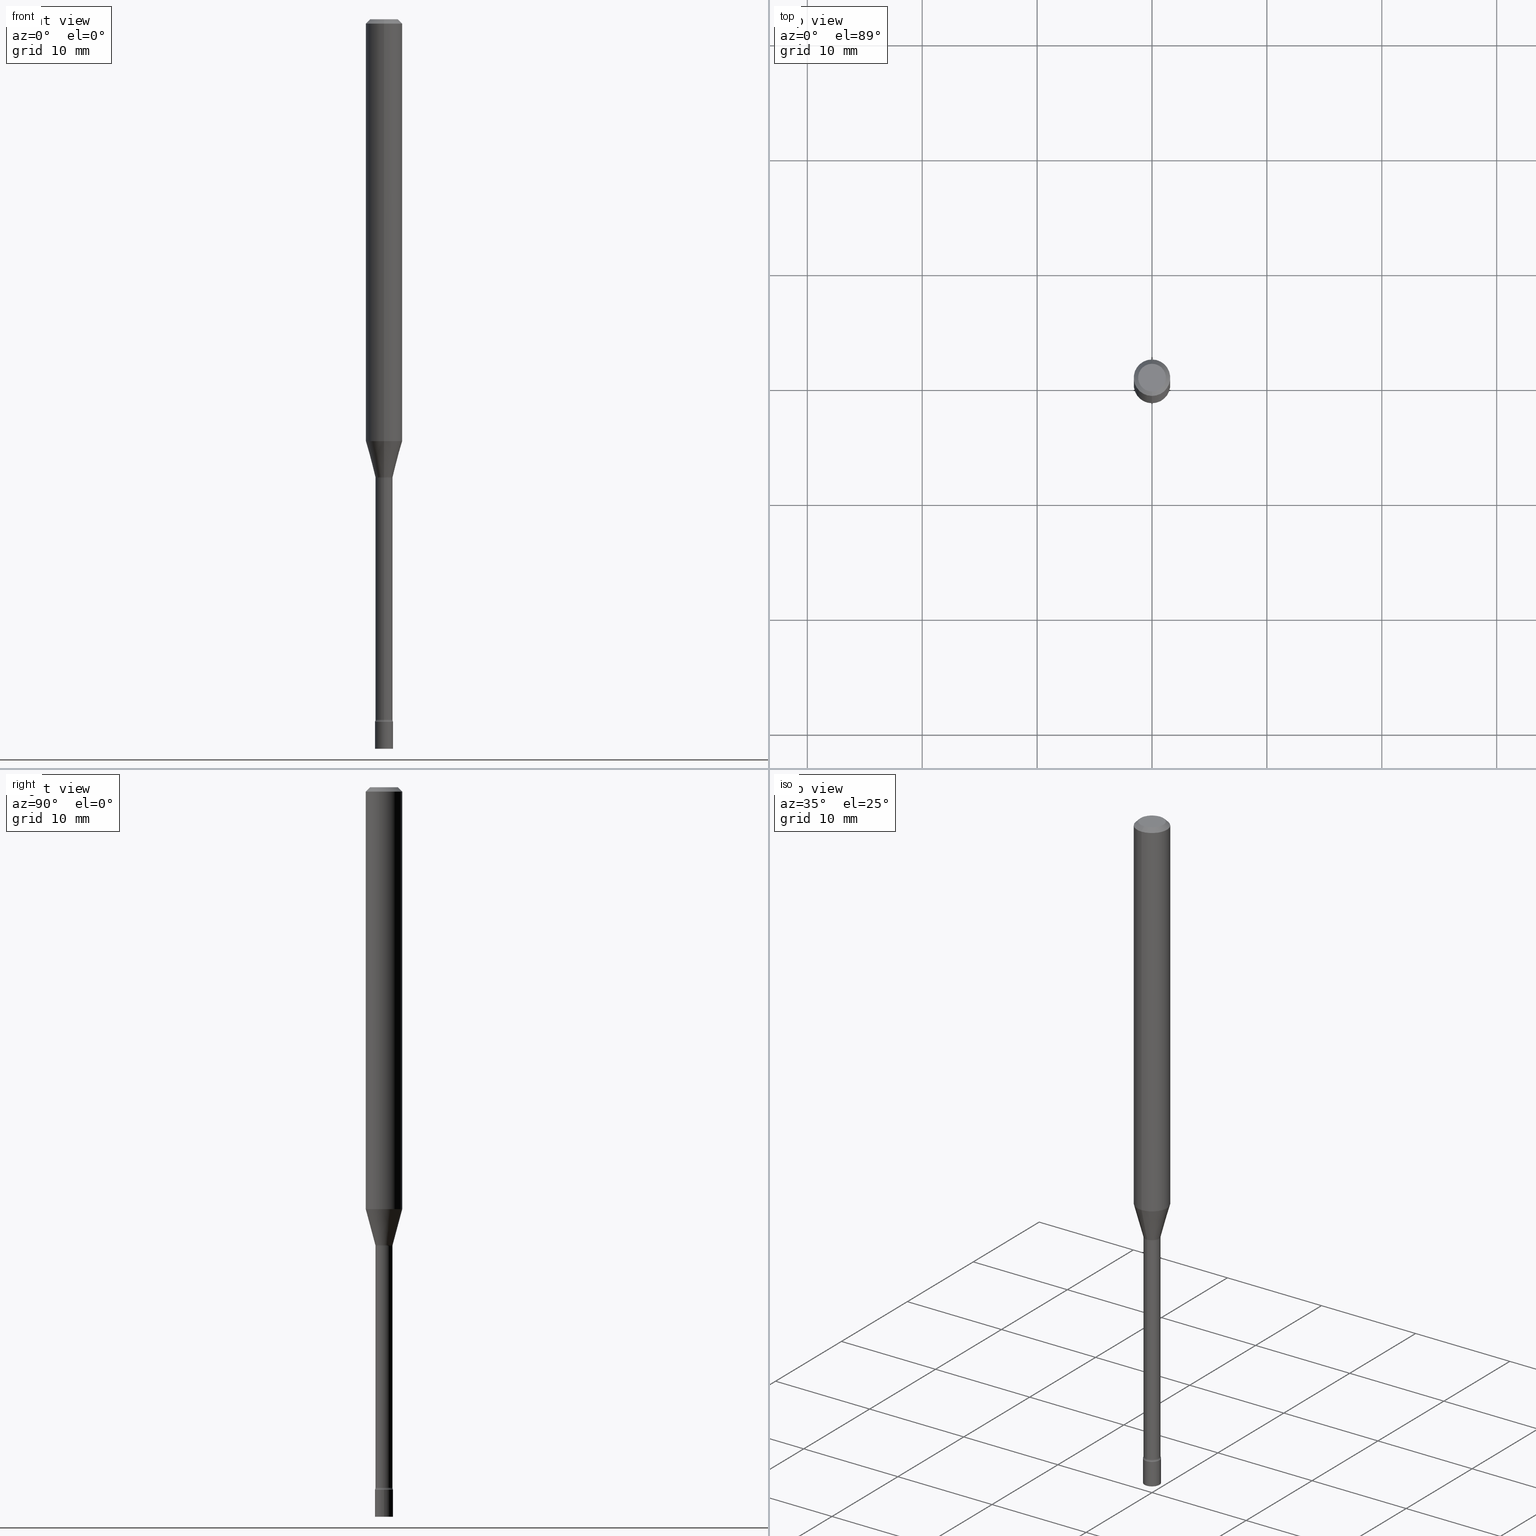
[diagram: canonical four-view strip — front | top / right | iso, engineering-drawing reading convention]
A machine part, canonical four-view strip (front | top / right | iso — engineering-drawing reading convention). The complete STEP part file that produces these views, byte-faithful:
ISO-10303-21;
HEADER;
FILE_DESCRIPTION (( 'STEP AP203' ),
    '1' );
FILE_NAME ('09687.STEP',
    '2024-03-09T00:49:43',
    ( '' ),
    ( '' ),
    'SwSTEP 2.0',
    'SolidWorks 2023',
    '' );
FILE_SCHEMA (( 'CONFIG_CONTROL_DESIGN' ));
ENDSEC;

DATA;
#1 = CIRCLE ( 'NONE', #371, 0.02966111260566398414 ) ;
#2 = FACE_OUTER_BOUND ( 'NONE', #141, .T. ) ;
#3 = DIRECTION ( 'NONE',  ( -6.982962677686265922E-15, -1.000000000000000000, 3.491503955502470193E-15 ) ) ;
#4 = VERTEX_POINT ( 'NONE', #437 ) ;
#5 = LINE ( 'NONE', #329, #478 ) ;
#6 = DIRECTION ( 'NONE',  ( -2.445453013056340806E-29, 3.491503955502470193E-15, 1.000000000000000000 ) ) ;
#7 = AXIS2_PLACEMENT_3D ( 'NONE', #51, #12, #211 ) ;
#8 = APPROVAL_PERSON_ORGANIZATION ( #301, #223, #138 ) ;
#9 = CARTESIAN_POINT ( 'NONE',  ( 5.868557853830122148E-29, -8.378853672651157378E-15, -2.399783525791634897 ) ) ;
#10 = CARTESIAN_POINT ( 'NONE',  ( 2.136957277799091056E-16, 0.02914999999999166522, -2.399783525791634897 ) ) ;
#11 = EDGE_CURVE ( 'NONE', #147, #474, #297, .T. ) ;
#12 = DIRECTION ( 'NONE',  ( -2.445453013056340806E-29, 3.491503955502470193E-15, 1.000000000000000000 ) ) ;
#13 = DIRECTION ( 'NONE',  ( -2.445468806185136597E-29, 3.491481338843145583E-15, 1.000000000000000000 ) ) ;
#14 = CARTESIAN_POINT ( 'NONE',  ( 5.868595753920427457E-29, -8.378799397564700895E-15, -2.399783525791634897 ) ) ;
#15 = DIRECTION ( 'NONE',  ( -2.445453013056340806E-29, 3.491503955502470193E-15, 1.000000000000000000 ) ) ;
#16 = ADVANCED_FACE ( 'NONE', ( #237 ), #389, .F. ) ;
#17 = DIRECTION ( 'NONE',  ( -6.982962677686265922E-15, -1.000000000000000000, 0.000000000000000000 ) ) ;
#18 = VECTOR ( 'NONE', #132, 39.37007874015748143 ) ;
#19 = AXIS2_PLACEMENT_3D ( 'NONE', #214, #172, #450 ) ;
#20 = APPROVAL_ROLE ( '' ) ;
#21 = DIRECTION ( 'NONE',  ( -6.982962677686266711E-15, -1.000000000000000000, 0.000000000000000000 ) ) ;
#22 = APPROVAL ( #420, 'UNSPECIFIED' ) ;
#23 = ORIENTED_EDGE ( 'NONE', *, *, #393, .T. ) ;
#24 = DATE_TIME_ROLE ( 'creation_date' ) ;
#25 = VERTEX_POINT ( 'NONE', #82 ) ;
#26 = COORDINATED_UNIVERSAL_TIME_OFFSET ( 5, 0, .BEHIND. ) ;
#27 = AXIS2_PLACEMENT_3D ( 'NONE', #87, #49, #55 ) ;
#28 = ORIENTED_EDGE ( 'NONE', *, *, #136, .F. ) ;
#29 = CC_DESIGN_PERSON_AND_ORGANIZATION_ASSIGNMENT ( #513, #429, ( #191 ) ) ;
#30 = DATE_AND_TIME ( #267, #374 ) ;
#31 = ORIENTED_EDGE ( 'NONE', *, *, #219, .F. ) ;
#32 = EDGE_CURVE ( 'NONE', #4, #25, #176, .T. ) ;
#33 = AXIS2_PLACEMENT_3D ( 'NONE', #377, #204, #244 ) ;
#34 = AXIS2_PLACEMENT_3D ( 'NONE', #14, #6, #341 ) ;
#35 = DIRECTION ( 'NONE',  ( -6.982962677686265922E-15, -1.000000000000000000, 3.483106191921935554E-15 ) ) ;
#36 = APPROVAL_PERSON_ORGANIZATION ( #395, #106, #20 ) ;
#37 = CC_DESIGN_SECURITY_CLASSIFICATION ( #353, ( #432 ) ) ;
#38 = DIRECTION ( 'NONE',  ( 1.000000000000000000, -6.982962677686266711E-15, 4.876176775795935232E-29 ) ) ;
#39 = EDGE_CURVE ( 'NONE', #119, #239, #245, .T. ) ;
#40 = EDGE_LOOP ( 'NONE', ( #226, #190, #145, #262 ) ) ;
#41 = CARTESIAN_POINT ( 'NONE',  ( 0.000000000000000000, 0.000000000000000000, 0.000000000000000000 ) ) ;
#42 = ORIENTED_EDGE ( 'NONE', *, *, #516, .F. ) ;
#43 = CARTESIAN_POINT ( 'NONE',  ( 3.668179519584518216E-31, -5.237255933253716063E-17, -0.01500000000000003067 ) ) ;
#44 = ORIENTED_EDGE ( 'NONE', *, *, #39, .T. ) ;
#45 = EDGE_CURVE ( 'NONE', #350, #160, #194, .T. ) ;
#46 = TOROIDAL_SURFACE ( 'NONE', #34, 0.04415000000000007807, 0.01500000000000003240 ) ;
#47 = DIRECTION ( 'NONE',  ( -2.445453013056340806E-29, 3.491503955502470193E-15, 1.000000000000000000 ) ) ;
#48 = DIRECTION ( 'NONE',  ( -2.445453013056340806E-29, 3.491503955502470193E-15, 1.000000000000000000 ) ) ;
#49 = DIRECTION ( 'NONE',  ( -2.445453013056340806E-29, 3.491503955502470193E-15, 1.000000000000000000 ) ) ;
#50 = CIRCLE ( 'NONE', #438, 0.01500000000000003587 ) ;
#51 = CARTESIAN_POINT ( 'NONE',  ( 0.000000000000000000, 0.000000000000000000, 0.000000000000000000 ) ) ;
#52 = CARTESIAN_POINT ( 'NONE',  ( 5.886243416487624138E-29, -8.403995582595451079E-15, -2.407000000000000028 ) ) ;
#53 = DIRECTION ( 'NONE',  ( -6.982962677686265922E-15, -1.000000000000000000, 3.491503955502470193E-15 ) ) ;
#54 = EDGE_CURVE ( 'NONE', #150, #355, #151, .T. ) ;
#55 = DIRECTION ( 'NONE',  ( -6.982962677686265922E-15, -1.000000000000000000, 0.000000000000000000 ) ) ;
#56 = EDGE_CURVE ( 'NONE', #203, #62, #497, .T. ) ;
#57 = CARTESIAN_POINT ( 'NONE',  ( -2.035533620545162301E-16, -0.02915000000000548749, -1.571974787463811030 ) ) ;
#58 = VECTOR ( 'NONE', #502, 39.37007874015748143 ) ;
#59 = FACE_OUTER_BOUND ( 'NONE', #515, .T. ) ;
#60 = ORIENTED_EDGE ( 'NONE', *, *, #257, .F. ) ;
#61 = PERSON_AND_ORGANIZATION ( #123, #229 ) ;
#62 = VERTEX_POINT ( 'NONE', #125 ) ;
#63 = APPROVAL_DATE_TIME ( #146, #106 ) ;
#64 = ORIENTED_EDGE ( 'NONE', *, *, #56, .T. ) ;
#65 = AXIS2_PLACEMENT_3D ( 'NONE', #359, #435, #122 ) ;
#66 = PERSON_AND_ORGANIZATION ( #123, #229 ) ;
#67 = AXIS2_PLACEMENT_3D ( 'NONE', #443, #84, #403 ) ;
#68 = APPROVAL_PERSON_ORGANIZATION ( #66, #22, #182 ) ;
#69 = ORIENTED_EDGE ( 'NONE', *, *, #317, .F. ) ;
#70 = CALENDAR_DATE ( 2024, 8, 3 ) ;
#71 = ORIENTED_EDGE ( 'NONE', *, *, #509, .T. ) ;
#72 = DIRECTION ( 'NONE',  ( -2.445453013056340806E-29, 3.491503955502470193E-15, 1.000000000000000000 ) ) ;
#73 = DIRECTION ( 'NONE',  ( -2.445468806185136597E-29, 3.491481338843145583E-15, 1.000000000000000000 ) ) ;
#74 = CIRCLE ( 'NONE', #209, 0.01500000000000002720 ) ;
#75 = DIRECTION ( 'NONE',  ( -6.982962677686265922E-15, -1.000000000000000000, 4.370956789862821150E-15 ) ) ;
#76 = FACE_OUTER_BOUND ( 'NONE', #104, .T. ) ;
#77 = ORIENTED_EDGE ( 'NONE', *, *, #243, .F. ) ;
#78 = FACE_OUTER_BOUND ( 'NONE', #40, .T. ) ;
#79 = ADVANCED_FACE ( 'NONE', ( #92 ), #184, .F. ) ;
#80 = ORIENTED_EDGE ( 'NONE', *, *, #54, .F. ) ;
#81 = DIRECTION ( 'NONE',  ( -2.445453013056340806E-29, 3.491503955502470193E-15, 1.000000000000000000 ) ) ;
#82 = CARTESIAN_POINT ( 'NONE',  ( -3.773273898774340269E-16, -0.04749999999999999362, 1.369336012498162259E-16 ) ) ;
#83 = CIRCLE ( 'NONE', #193, 0.02915000000000004393 ) ;
#84 = DIRECTION ( 'NONE',  ( -2.445453013056340806E-29, 3.491503955502470193E-15, 1.000000000000000000 ) ) ;
#85 = CARTESIAN_POINT ( 'NONE',  ( 2.071232074740693438E-16, 0.02915000000000002311, -1.017773403028970950E-16 ) ) ;
#86 = CARTESIAN_POINT ( 'NONE',  ( 3.274220454076525799E-16, 0.02966111260565850935, -1.568092501787273108 ) ) ;
#87 = CARTESIAN_POINT ( 'NONE',  ( 3.834696533246742775E-29, -5.475001172584028090E-15, -1.568092501787273108 ) ) ;
#88 = CIRCLE ( 'NONE', #19, 0.03099999999999999978 ) ;
#89 = CARTESIAN_POINT ( 'NONE',  ( 3.534990624841963058E-29, -5.047095030410835227E-15, -1.445536105567578167 ) ) ;
#90 = DIRECTION ( 'NONE',  ( -6.982962677686265922E-15, -1.000000000000000000, 0.000000000000000000 ) ) ;
#91 = EDGE_CURVE ( 'NONE', #25, #239, #215, .T. ) ;
#92 = FACE_OUTER_BOUND ( 'NONE', #311, .T. ) ;
#93 = DIRECTION ( 'NONE',  ( 1.000000000000000000, -6.982962677686265922E-15, 4.876176775795935793E-29 ) ) ;
#94 =( LENGTH_UNIT ( ) NAMED_UNIT ( * ) SI_UNIT ( $, .METRE. ) );
#95 = DIRECTION ( 'NONE',  ( -2.445453013056340806E-29, 3.491503955502470193E-15, 1.000000000000000000 ) ) ;
#96 = ORIENTED_EDGE ( 'NONE', *, *, #251, .T. ) ;
#97 = AXIS2_PLACEMENT_3D ( 'NONE', #240, #200, #408 ) ;
#98 = DATE_TIME_ROLE ( 'classification_date' ) ;
#99 = ORIENTED_EDGE ( 'NONE', *, *, #263, .T. ) ;
#100 = EDGE_LOOP ( 'NONE', ( #440, #520 ) ) ;
#101 = PERSON_AND_ORGANIZATION ( #123, #229 ) ;
#102 = AXIS2_PLACEMENT_3D ( 'NONE', #300, #208, #379 ) ;
#103 = LOCAL_TIME ( 19, 49, 43.00000000000000000, #427 ) ;
#104 = EDGE_LOOP ( 'NONE', ( #407, #357, #77, #472 ) ) ;
#105 = CARTESIAN_POINT ( 'NONE',  ( 3.668179519584518216E-31, -5.237255933253716063E-17, -0.01500000000000003067 ) ) ;
#106 = APPROVAL ( #179, 'UNSPECIFIED' ) ;
#107 = CYLINDRICAL_SURFACE ( 'NONE', #260, 0.03099999999999999978 ) ;
#108 = VERTEX_POINT ( 'NONE', #10 ) ;
#109 = EDGE_CURVE ( 'NONE', #108, #232, #421, .T. ) ;
#110 = LINE ( 'NONE', #401, #400 ) ;
#111 = AXIS2_PLACEMENT_3D ( 'NONE', #247, #47, #314 ) ;
#112 = AXIS2_PLACEMENT_3D ( 'NONE', #231, #281, #175 ) ;
#113 = ORIENTED_EDGE ( 'NONE', *, *, #166, .T. ) ;
#114 = ADVANCED_BREP_SHAPE_REPRESENTATION ( '09687', ( #189, #367, #168 ), #210 ) ;
#115 = CC_DESIGN_APPROVAL ( #22, ( #432 ) ) ;
#116 = DIRECTION ( 'NONE',  ( -6.982962677686265922E-15, -1.000000000000000000, 3.491503955502470193E-15 ) ) ;
#117 = EDGE_CURVE ( 'NONE', #62, #160, #477, .T. ) ;
#118 = DIRECTION ( 'NONE',  ( 6.982962677686265922E-15, 1.000000000000000000, -3.483106191921935554E-15 ) ) ;
#119 = VERTEX_POINT ( 'NONE', #386 ) ;
#120 = CYLINDRICAL_SURFACE ( 'NONE', #33, 0.03099999999999999978 ) ;
#121 = CARTESIAN_POINT ( 'NONE',  ( 4.440892098500977205E-16, 0.06249999999999492073, -1.445536105567578389 ) ) ;
#122 = DIRECTION ( 'NONE',  ( -6.982962677686265922E-15, -1.000000000000000000, 3.491503955502470193E-15 ) ) ;
#123 = PERSON ( 'UNSPECIFIED', 'UNSPECIFIED', 'UNSPECIFIED', ('UNSPECIFIED'), ('UNSPECIFIED'), ('UNSPECIFIED') ) ;
#124 = LINE ( 'NONE', #412, #306 ) ;
#125 = CARTESIAN_POINT ( 'NONE',  ( -0.03099999999999999978, -8.346081216766027547E-15, -2.407000000000000028 ) ) ;
#126 = EDGE_CURVE ( 'NONE', #108, #150, #205, .T. ) ;
#127 = AXIS2_PLACEMENT_3D ( 'NONE', #448, #416, #53 ) ;
#128 = TOROIDAL_SURFACE ( 'NONE', #228, 0.04415000000000000174, 0.01500000000000002373 ) ;
#129 = CARTESIAN_POINT ( 'NONE',  ( 5.868557853830122148E-29, -8.378853672651157378E-15, -2.399783525791634897 ) ) ;
#130 = DIRECTION ( 'NONE',  ( -2.445453013056340806E-29, 3.491503955502470193E-15, 1.000000000000000000 ) ) ;
#131 = DIRECTION ( 'NONE',  ( -6.982962677686266711E-15, -1.000000000000000000, 3.491503955502470193E-15 ) ) ;
#132 = DIRECTION ( 'NONE',  ( -2.445468806185136877E-29, 3.491481338843145188E-15, 1.000000000000000000 ) ) ;
#133 = ADVANCED_FACE ( 'NONE', ( #292 ), #120, .T. ) ;
#134 = FACE_OUTER_BOUND ( 'NONE', #183, .T. ) ;
#135 = DIRECTION ( 'NONE',  ( -2.445453013056340806E-29, 3.491503955502470193E-15, 1.000000000000000000 ) ) ;
#136 = EDGE_CURVE ( 'NONE', #160, #62, #331, .T. ) ;
#137 = CARTESIAN_POINT ( 'NONE',  ( 7.070498346885961015E-46, -1.009492834813148577E-31, -2.891283663655108684E-17 ) ) ;
#138 = APPROVAL_ROLE ( '' ) ;
#139 = ORIENTED_EDGE ( 'NONE', *, *, #148, .F. ) ;
#140 = COORDINATED_UNIVERSAL_TIME_OFFSET ( 5, 0, .BEHIND. ) ;
#141 = EDGE_LOOP ( 'NONE', ( #242, #434, #96, #80 ) ) ;
#142 = CIRCLE ( 'NONE', #235, 0.02915000000000004393 ) ;
#143 = CC_DESIGN_APPROVAL ( #106, ( #191 ) ) ;
#144 = PERSON_AND_ORGANIZATION ( #123, #229 ) ;
#145 = ORIENTED_EDGE ( 'NONE', *, *, #334, .F. ) ;
#146 = DATE_AND_TIME ( #346, #103 ) ;
#147 = VERTEX_POINT ( 'NONE', #482 ) ;
#148 = EDGE_CURVE ( 'NONE', #504, #366, #1, .T. ) ;
#149 = MECHANICAL_CONTEXT ( 'NONE', #498, 'mechanical' ) ;
#150 = VERTEX_POINT ( 'NONE', #280 ) ;
#151 = CIRCLE ( 'NONE', #360, 0.02914999999999999883 ) ;
#152 = AXIS2_PLACEMENT_3D ( 'NONE', #255, #335, #413 ) ;
#153 = ORIENTED_EDGE ( 'NONE', *, *, #334, .T. ) ;
#154 = DIRECTION ( 'NONE',  ( -2.445453013056340806E-29, 3.491503955502470193E-15, 1.000000000000000000 ) ) ;
#155 = ORIENTED_EDGE ( 'NONE', *, *, #45, .T. ) ;
#156 = FACE_OUTER_BOUND ( 'NONE', #268, .T. ) ;
#157 = ORIENTED_EDGE ( 'NONE', *, *, #340, .T. ) ;
#158 = CYLINDRICAL_SURFACE ( 'NONE', #67, 0.02915000000000002311 ) ;
#159 = AXIS2_PLACEMENT_3D ( 'NONE', #492, #417, #495 ) ;
#160 = VERTEX_POINT ( 'NONE', #368 ) ;
#161 = CC_DESIGN_APPROVAL ( #223, ( #353 ) ) ;
#162 = CARTESIAN_POINT ( 'NONE',  ( -2.035533620544962867E-16, -0.02915000000000842612, -2.399783525791634897 ) ) ;
#163 = ORIENTED_EDGE ( 'NONE', *, *, #398, .T. ) ;
#164 = DIRECTION ( 'NONE',  ( -1.000000000000000000, 6.982962677686265922E-15, -4.883557194083112340E-29 ) ) ;
#165 = LINE ( 'NONE', #415, #332 ) ;
#166 = EDGE_CURVE ( 'NONE', #234, #266, #50, .T. ) ;
#167 = CARTESIAN_POINT ( 'NONE',  ( 5.886243416487624138E-29, -8.403995582595451079E-15, -2.407000000000000028 ) ) ;
#168 = AXIS2_PLACEMENT_3D ( 'NONE', #392, #424, #467 ) ;
#169 = DIRECTION ( 'NONE',  ( 2.438088387897960049E-29, -3.491481338843145188E-15, -1.000000000000000000 ) ) ;
#170 = DIRECTION ( 'NONE',  ( 1.000000000000000000, -6.982962677686270655E-15, 0.000000000000000000 ) ) ;
#171 = PRODUCT_DEFINITION_SHAPE ( 'NONE', 'NONE',  #191 ) ;
#172 = DIRECTION ( 'NONE',  ( -2.445468806185136597E-29, 3.491481338843145583E-15, 1.000000000000000000 ) ) ;
#173 = CARTESIAN_POINT ( 'NONE',  ( -2.071224423039628932E-16, -0.02966111260566946239, -1.568092501787273108 ) ) ;
#174 = PLANE ( 'NONE',  #322 ) ;
#175 = DIRECTION ( 'NONE',  ( -6.982962677686265922E-15, -1.000000000000000000, 0.000000000000000000 ) ) ;
#176 = CIRCLE ( 'NONE', #111, 0.04749999999999999362 ) ;
#177 = CIRCLE ( 'NONE', #246, 0.02914999999999999883 ) ;
#178 = DIRECTION ( 'NONE',  ( -2.445453013056340806E-29, 3.491503955502470193E-15, 1.000000000000000000 ) ) ;
#179 = APPROVAL_STATUS ( 'not_yet_approved' ) ;
#180 = ADVANCED_FACE ( 'NONE', ( #156 ), #202, .T. ) ;
#181 = EDGE_LOOP ( 'NONE', ( #282, #139, #411, #153 ) ) ;
#182 = APPROVAL_ROLE ( '' ) ;
#183 = EDGE_LOOP ( 'NONE', ( #423, #316, #259, #69 ) ) ;
#184 = TOROIDAL_SURFACE ( 'NONE', #127, 0.04415000000000007807, 0.01500000000000003240 ) ;
#185 = FACE_OUTER_BOUND ( 'NONE', #309, .T. ) ;
#186 = DATE_AND_TIME ( #503, #277 ) ;
#187 = ORIENTED_EDGE ( 'NONE', *, *, #109, .F. ) ;
#188 = ADVANCED_FACE ( 'NONE', ( #241 ), #406, .F. ) ;
#189 = MANIFOLD_SOLID_BREP ( 'Body-Move/Copy2[1]', #349 ) ;
#190 = ORIENTED_EDGE ( 'NONE', *, *, #126, .T. ) ;
#191 = PRODUCT_DEFINITION ( 'UNKNOWN', '', #432, #291 ) ;
#192 = CLOSED_SHELL ( 'NONE', ( #464, #213, #79, #180, #225, #451, #483, #313, #325, #466, #188, #302, #468, #16 ) ) ;
#193 = AXIS2_PLACEMENT_3D ( 'NONE', #9, #216, #220 ) ;
#194 = LINE ( 'NONE', #402, #18 ) ;
#195 = CYLINDRICAL_SURFACE ( 'NONE', #471, 0.06250000000000000000 ) ;
#196 = ORIENTED_EDGE ( 'NONE', *, *, #56, .F. ) ;
#197 = DIRECTION ( 'NONE',  ( -2.445453013056340806E-29, 3.491503955502470193E-15, 1.000000000000000000 ) ) ;
#198 = CARTESIAN_POINT ( 'NONE',  ( 2.164718430083331013E-16, 0.03099999999999159331, -2.407000000000000028 ) ) ;
#199 = ORIENTED_EDGE ( 'NONE', *, *, #320, .F. ) ;
#200 = DIRECTION ( 'NONE',  ( 2.445453013056340526E-29, -3.491503955502470193E-15, -1.000000000000000000 ) ) ;
#201 = DIRECTION ( 'NONE',  ( 1.839019923739598738E-15, 0.2588190451025247363, 0.9659258262890673130 ) ) ;
#202 = CONICAL_SURFACE ( 'NONE', #500, 0.06250000000000000000, 0.7853981633974483900 ) ;
#203 = VERTEX_POINT ( 'NONE', #480 ) ;
#204 = DIRECTION ( 'NONE',  ( -2.445468806185136597E-29, 3.491481338843145583E-15, 1.000000000000000000 ) ) ;
#205 = LINE ( 'NONE', #85, #489 ) ;
#206 = EDGE_CURVE ( 'NONE', #366, #474, #441, .T. ) ;
#207 = CARTESIAN_POINT ( 'NONE',  ( 5.886205402426612811E-29, -8.404050020894445752E-15, -2.407000000000000028 ) ) ;
#208 = DIRECTION ( 'NONE',  ( 2.445453013056340806E-29, -3.491503955502470193E-15, -1.000000000000000000 ) ) ;
#209 = AXIS2_PLACEMENT_3D ( 'NONE', #485, #405, #339 ) ;
#210 =( GEOMETRIC_REPRESENTATION_CONTEXT ( 3 ) GLOBAL_UNCERTAINTY_ASSIGNED_CONTEXT ( ( #484 ) ) GLOBAL_UNIT_ASSIGNED_CONTEXT ( ( #256, #217, #342 ) ) REPRESENTATION_CONTEXT ( 'NONE', 'WORKASPACE' ) );
#211 = DIRECTION ( 'NONE',  ( -6.982962677686265922E-15, -1.000000000000000000, 3.491503955502470193E-15 ) ) ;
#212 = DIRECTION ( 'NONE',  ( 1.000000000000000000, -7.105427357601001070E-15, 4.926315785516276802E-29 ) ) ;
#213 = ADVANCED_FACE ( 'NONE', ( #78 ), #158, .T. ) ;
#214 = CARTESIAN_POINT ( 'NONE',  ( 6.113672015462842613E-29, -8.728703347107864943E-15, -2.500000000000000000 ) ) ;
#215 = LINE ( 'NONE', #337, #321 ) ;
#216 = DIRECTION ( 'NONE',  ( -2.445453013056340806E-29, 3.491503955502470193E-15, 1.000000000000000000 ) ) ;
#217 =( NAMED_UNIT ( * ) PLANE_ANGLE_UNIT ( ) SI_UNIT ( $, .RADIAN. ) );
#218 = CIRCLE ( 'NONE', #159, 0.01500000000000002720 ) ;
#219 = EDGE_CURVE ( 'NONE', #4, #119, #110, .T. ) ;
#220 = DIRECTION ( 'NONE',  ( -6.982962677686266711E-15, -1.000000000000000000, 0.000000000000000000 ) ) ;
#221 = SHAPE_DEFINITION_REPRESENTATION ( #171, #114 ) ;
#222 = ORIENTED_EDGE ( 'NONE', *, *, #206, .F. ) ;
#223 = APPROVAL ( #304, 'UNSPECIFIED' ) ;
#224 = EDGE_LOOP ( 'NONE', ( #42, #463 ) ) ;
#225 = ADVANCED_FACE ( 'NONE', ( #76 ), #195, .T. ) ;
#226 = ORIENTED_EDGE ( 'NONE', *, *, #460, .T. ) ;
#227 = AXIS2_PLACEMENT_3D ( 'NONE', #287, #436, #276 ) ;
#228 = AXIS2_PLACEMENT_3D ( 'NONE', #271, #197, #116 ) ;
#229 = ORGANIZATION ( 'UNSPECIFIED', 'UNSPECIFIED', '' ) ;
#230 = SECURITY_CLASSIFICATION_LEVEL ( 'unclassified' ) ;
#231 = CARTESIAN_POINT ( 'NONE',  ( 3.834696533246742775E-29, -5.475001172584028090E-15, -1.568092501787273108 ) ) ;
#232 = VERTEX_POINT ( 'NONE', #410 ) ;
#233 = APPLICATION_CONTEXT ( 'configuration controlled 3d designs of mechanical parts and assemblies' ) ;
#234 = VERTEX_POINT ( 'NONE', #162 ) ;
#235 = AXIS2_PLACEMENT_3D ( 'NONE', #129, #178, #21 ) ;
#236 = CARTESIAN_POINT ( 'NONE',  ( 3.668179519584518216E-31, -5.237255933253716063E-17, -0.01500000000000003067 ) ) ;
#237 = FACE_OUTER_BOUND ( 'NONE', #181, .T. ) ;
#238 = DIRECTION ( 'NONE',  ( -6.982962677686265922E-15, -1.000000000000000000, 0.000000000000000000 ) ) ;
#239 = VERTEX_POINT ( 'NONE', #326 ) ;
#240 = CARTESIAN_POINT ( 'NONE',  ( 3.316907271900976096E-16, 0.04749999999999999362, -1.803028562046428839E-16 ) ) ;
#241 = FACE_OUTER_BOUND ( 'NONE', #224, .T. ) ;
#242 = ORIENTED_EDGE ( 'NONE', *, *, #126, .F. ) ;
#243 = EDGE_CURVE ( 'NONE', #239, #119, #490, .T. ) ;
#244 = DIRECTION ( 'NONE',  ( 1.000000000000000000, -6.982962677686266711E-15, 4.876176775795935232E-29 ) ) ;
#245 = CIRCLE ( 'NONE', #380, 0.06250000000000000000 ) ;
#246 = AXIS2_PLACEMENT_3D ( 'NONE', #383, #135, #458 ) ;
#247 = CARTESIAN_POINT ( 'NONE',  ( 7.070498346885961015E-46, -1.009492834813148577E-31, -2.891283663655108684E-17 ) ) ;
#248 = DIRECTION ( 'NONE',  ( 2.445453013056340806E-29, -3.491503955502470193E-15, -1.000000000000000000 ) ) ;
#249 = LINE ( 'NONE', #345, #58 ) ;
#250 = FACE_OUTER_BOUND ( 'NONE', #278, .T. ) ;
#251 = EDGE_CURVE ( 'NONE', #234, #355, #5, .T. ) ;
#252 = DIRECTION ( 'NONE',  ( -2.445468806185136877E-29, 3.491481338843145188E-15, 1.000000000000000000 ) ) ;
#253 = CIRCLE ( 'NONE', #372, 0.03099999999999999978 ) ;
#254 = FACE_OUTER_BOUND ( 'NONE', #264, .T. ) ;
#255 = CARTESIAN_POINT ( 'NONE',  ( 6.113672015462842613E-29, -8.728703347107864943E-15, -2.500000000000000000 ) ) ;
#256 =( CONVERSION_BASED_UNIT ( 'INCH', #370 ) LENGTH_UNIT ( ) NAMED_UNIT ( #501 ) );
#257 = EDGE_CURVE ( 'NONE', #474, #119, #124, .T. ) ;
#258 = CARTESIAN_POINT ( 'NONE',  ( 0.03099999999999999978, -8.945175190116139274E-15, -2.500000000000000000 ) ) ;
#259 = ORIENTED_EDGE ( 'NONE', *, *, #11, .F. ) ;
#260 = AXIS2_PLACEMENT_3D ( 'NONE', #272, #73, #38 ) ;
#261 = CC_DESIGN_DATE_AND_TIME_ASSIGNMENT ( #30, #98, ( #353 ) ) ;
#262 = ORIENTED_EDGE ( 'NONE', *, *, #251, .F. ) ;
#263 = EDGE_CURVE ( 'NONE', #232, #266, #253, .T. ) ;
#264 = EDGE_LOOP ( 'NONE', ( #60, #465, #23, #347 ) ) ;
#265 = APPLICATION_PROTOCOL_DEFINITION ( 'international standard', 'config_control_design', 1994, #233 ) ;
#266 = VERTEX_POINT ( 'NONE', #517 ) ;
#267 = CALENDAR_DATE ( 2024, 8, 3 ) ;
#268 = EDGE_LOOP ( 'NONE', ( #199, #481, #303, #31 ) ) ;
#269 = ORIENTED_EDGE ( 'NONE', *, *, #117, .F. ) ;
#270 = ADVANCED_FACE ( 'NONE', ( #473 ), #107, .T. ) ;
#271 = CARTESIAN_POINT ( 'NONE',  ( 3.844215306852259404E-29, -5.488520635561816655E-15, -1.571974787463811030 ) ) ;
#272 = CARTESIAN_POINT ( 'NONE',  ( 0.000000000000000000, 0.000000000000000000, 0.000000000000000000 ) ) ;
#273 = ORIENTED_EDGE ( 'NONE', *, *, #378, .T. ) ;
#274 = CC_DESIGN_PERSON_AND_ORGANIZATION_ASSIGNMENT ( #101, #510, ( #432 ) ) ;
#275 = CIRCLE ( 'NONE', #27, 0.02966111260566398414 ) ;
#276 = DIRECTION ( 'NONE',  ( 1.000000000000000000, -6.982962677686270655E-15, 0.000000000000000000 ) ) ;
#277 = LOCAL_TIME ( 19, 49, 43.00000000000000000, #26 ) ;
#278 = EDGE_LOOP ( 'NONE', ( #518, #514 ) ) ;
#279 = PLANE ( 'NONE',  #97 ) ;
#280 = CARTESIAN_POINT ( 'NONE',  ( 2.071232074741281139E-16, 0.02914999999999451363, -1.571974787463811030 ) ) ;
#281 = DIRECTION ( 'NONE',  ( -2.445453013056340806E-29, 3.491503955502470193E-15, 1.000000000000000000 ) ) ;
#282 = ORIENTED_EDGE ( 'NONE', *, *, #509, .F. ) ;
#283 = CARTESIAN_POINT ( 'NONE',  ( 3.834696533246742775E-29, -5.475001172584028090E-15, -1.568092501787273108 ) ) ;
#284 = EDGE_CURVE ( 'NONE', #474, #147, #409, .T. ) ;
#285 = ORIENTED_EDGE ( 'NONE', *, *, #445, .F. ) ;
#286 = CARTESIAN_POINT ( 'NONE',  ( 0.000000000000000000, 0.000000000000000000, 0.000000000000000000 ) ) ;
#287 = CARTESIAN_POINT ( 'NONE',  ( 5.886243416487624138E-29, -8.403995582595451079E-15, -2.407000000000000028 ) ) ;
#288 = AXIS2_PLACEMENT_3D ( 'NONE', #137, #290, #131 ) ;
#289 = DIRECTION ( 'NONE',  ( -4.851104656540964275E-15, -0.7071067811865500152, -0.7071067811865450192 ) ) ;
#290 = DIRECTION ( 'NONE',  ( -2.445453013056340806E-29, 3.491503955502470193E-15, 1.000000000000000000 ) ) ;
#291 = DESIGN_CONTEXT ( 'detailed design', #233, 'design' ) ;
#292 = FACE_OUTER_BOUND ( 'NONE', #511, .T. ) ;
#293 = FACE_OUTER_BOUND ( 'NONE', #394, .T. ) ;
#294 = CARTESIAN_POINT ( 'NONE',  ( 3.834696533246742775E-29, -5.475001172584028090E-15, -1.568092501787273108 ) ) ;
#295 = DIRECTION ( 'NONE',  ( -2.445453013056340806E-29, 3.491503955502470193E-15, 1.000000000000000000 ) ) ;
#296 = DIRECTION ( 'NONE',  ( -2.445453013056340806E-29, 3.491503955502470193E-15, 1.000000000000000000 ) ) ;
#297 = CIRCLE ( 'NONE', #469, 0.06250000000000000000 ) ;
#298 = AXIS2_PLACEMENT_3D ( 'NONE', #198, #475, #318 ) ;
#299 = LOCAL_TIME ( 19, 49, 43.00000000000000000, #140 ) ;
#300 = CARTESIAN_POINT ( 'NONE',  ( 3.668179519584518216E-31, -5.237255933253716063E-17, -0.01500000000000003067 ) ) ;
#301 = PERSON_AND_ORGANIZATION ( #123, #229 ) ;
#302 = ADVANCED_FACE ( 'NONE', ( #493 ), #46, .F. ) ;
#303 = ORIENTED_EDGE ( 'NONE', *, *, #243, .T. ) ;
#304 = APPROVAL_STATUS ( 'not_yet_approved' ) ;
#305 = ORIENTED_EDGE ( 'NONE', *, *, #32, .F. ) ;
#306 = VECTOR ( 'NONE', #48, 39.37007874015748143 ) ;
#307 = ORIENTED_EDGE ( 'NONE', *, *, #516, .T. ) ;
#308 = COORDINATED_UNIVERSAL_TIME_OFFSET ( 5, 0, .BEHIND. ) ;
#309 = EDGE_LOOP ( 'NONE', ( #506, #71, #459, #285 ) ) ;
#310 = PERSON_AND_ORGANIZATION_ROLE ( 'classification_officer' ) ;
#311 = EDGE_LOOP ( 'NONE', ( #476, #319, #99, #428 ) ) ;
#312 = CIRCLE ( 'NONE', #152, 0.03099999999999999978 ) ;
#313 = ADVANCED_FACE ( 'NONE', ( #254 ), #452, .T. ) ;
#314 = DIRECTION ( 'NONE',  ( -6.982962677686266711E-15, -1.000000000000000000, 3.491503955502470193E-15 ) ) ;
#315 = DIRECTION ( 'NONE',  ( -6.982962677686265922E-15, -1.000000000000000000, 0.000000000000000000 ) ) ;
#316 = ORIENTED_EDGE ( 'NONE', *, *, #206, .T. ) ;
#317 = EDGE_CURVE ( 'NONE', #504, #147, #165, .T. ) ;
#318 = DIRECTION ( 'NONE',  ( -6.982962677686265922E-15, -1.000000000000000000, 3.491503955502470193E-15 ) ) ;
#319 = ORIENTED_EDGE ( 'NONE', *, *, #109, .T. ) ;
#320 = EDGE_CURVE ( 'NONE', #25, #4, #343, .T. ) ;
#321 = VECTOR ( 'NONE', #289, 39.37007874015748143 ) ;
#322 = AXIS2_PLACEMENT_3D ( 'NONE', #52, #418, #93 ) ;
#323 = CARTESIAN_POINT ( 'NONE',  ( -3.082978022197904944E-16, -0.04415000000000845332, -2.399783525791634453 ) ) ;
#324 = EDGE_LOOP ( 'NONE', ( #404, #369 ) ) ;
#325 = ADVANCED_FACE ( 'NONE', ( #293 ), #361, .T. ) ;
#326 = CARTESIAN_POINT ( 'NONE',  ( -4.364351673553912750E-16, -0.06250000000000005551, -0.01499999999999981209 ) ) ;
#327 = DIRECTION ( 'NONE',  ( -2.445453013056340806E-29, 3.491503955502470193E-15, 1.000000000000000000 ) ) ;
#328 = CYLINDRICAL_SURFACE ( 'NONE', #462, 0.02915000000000002311 ) ;
#329 = CARTESIAN_POINT ( 'NONE',  ( -2.035533620545548349E-16, -0.02915000000000002311, 1.017773403028970950E-16 ) ) ;
#330 = PLANE ( 'NONE',  #431 ) ;
#331 = CIRCLE ( 'NONE', #227, 0.03099999999999999978 ) ;
#332 = VECTOR ( 'NONE', #457, 39.37007874015748854 ) ;
#333 = CARTESIAN_POINT ( 'NONE',  ( 3.844190480451977319E-29, -5.488556188380051338E-15, -1.571974787463811030 ) ) ;
#334 = EDGE_CURVE ( 'NONE', #355, #150, #177, .T. ) ;
#335 = DIRECTION ( 'NONE',  ( -2.445468806185136597E-29, 3.491481338843145583E-15, 1.000000000000000000 ) ) ;
#336 = PRODUCT ( '09687', '09687', '', ( #149 ) ) ;
#337 = CARTESIAN_POINT ( 'NONE',  ( -4.287811248607203282E-16, -0.06250000000000005551, -0.01499999999999981209 ) ) ;
#338 = DIRECTION ( 'NONE',  ( -1.000000000000000000, 6.982962677686265922E-15, -4.876176775795935793E-29 ) ) ;
#339 = DIRECTION ( 'NONE',  ( 7.105427357600997914E-15, 1.000000000000000000, 0.000000000000000000 ) ) ;
#340 = EDGE_CURVE ( 'NONE', #366, #504, #275, .T. ) ;
#341 = DIRECTION ( 'NONE',  ( -6.982962677686265922E-15, -1.000000000000000000, 3.491503955502470193E-15 ) ) ;
#342 =( NAMED_UNIT ( * ) SI_UNIT ( $, .STERADIAN. ) SOLID_ANGLE_UNIT ( ) );
#343 = CIRCLE ( 'NONE', #288, 0.04749999999999999362 ) ;
#344 = LOCAL_TIME ( 19, 49, 43.00000000000000000, #433 ) ;
#345 = CARTESIAN_POINT ( 'NONE',  ( -4.364351673553916201E-16, -0.06250000000000000000, 2.182189972189043871E-16 ) ) ;
#346 = CALENDAR_DATE ( 2024, 8, 3 ) ;
#347 = ORIENTED_EDGE ( 'NONE', *, *, #39, .F. ) ;
#348 = APPLICATION_PROTOCOL_DEFINITION ( 'international standard', 'config_control_design', 1994, #498 ) ;
#349 = CLOSED_SHELL ( 'NONE', ( #270, #351, #133, #382 ) ) ;
#350 = VERTEX_POINT ( 'NONE', #258 ) ;
#351 = ADVANCED_FACE ( 'NONE', ( #250 ), #174, .T. ) ;
#352 = AXIS2_PLACEMENT_3D ( 'NONE', #496, #295, #90 ) ;
#353 = SECURITY_CLASSIFICATION ( '', '', #230 ) ;
#354 = APPROVAL_DATE_TIME ( #390, #22 ) ;
#355 = VERTEX_POINT ( 'NONE', #57 ) ;
#356 = PERSON_AND_ORGANIZATION_ROLE ( 'design_owner' ) ;
#357 = ORIENTED_EDGE ( 'NONE', *, *, #257, .T. ) ;
#358 = EDGE_CURVE ( 'NONE', #108, #234, #83, .T. ) ;
#359 = CARTESIAN_POINT ( 'NONE',  ( 3.844215306852259404E-29, -5.488520635561816655E-15, -1.571974787463811030 ) ) ;
#360 = AXIS2_PLACEMENT_3D ( 'NONE', #333, #296, #456 ) ;
#361 = CONICAL_SURFACE ( 'NONE', #102, 0.06250000000000000000, 0.7853981633974483900 ) ;
#362 = CC_DESIGN_PERSON_AND_ORGANIZATION_ASSIGNMENT ( #397, #310, ( #353 ) ) ;
#363 = EDGE_LOOP ( 'NONE', ( #187, #470, #113, #307 ) ) ;
#364 = DIRECTION ( 'NONE',  ( -6.982962677686265922E-15, -1.000000000000000000, 3.483106191921935554E-15 ) ) ;
#365 = DIRECTION ( 'NONE',  ( -6.982962677686266711E-15, -1.000000000000000000, 3.491503955502470588E-15 ) ) ;
#366 = VERTEX_POINT ( 'NONE', #86 ) ;
#367 = MANIFOLD_SOLID_BREP ( 'Body-Move/Copy2[2]', #192 ) ;
#368 = CARTESIAN_POINT ( 'NONE',  ( 0.03099999999999999978, -8.620467425603725410E-15, -2.407000000000000028 ) ) ;
#369 = ORIENTED_EDGE ( 'NONE', *, *, #378, .F. ) ;
#370 = LENGTH_MEASURE_WITH_UNIT ( LENGTH_MEASURE( 0.02539999999999999897 ), #94 );
#371 = AXIS2_PLACEMENT_3D ( 'NONE', #283, #439, #238 ) ;
#372 = AXIS2_PLACEMENT_3D ( 'NONE', #207, #154, #315 ) ;
#373 = DIRECTION ( 'NONE',  ( -2.445453013056340806E-29, 3.491503955502470193E-15, 1.000000000000000000 ) ) ;
#374 = LOCAL_TIME ( 19, 49, 43.00000000000000000, #308 ) ;
#375 = ORIENTED_EDGE ( 'NONE', *, *, #219, .T. ) ;
#376 = DIRECTION ( 'NONE',  ( 4.937700262164548042E-15, 0.7071067811865451302, -0.7071067811865499042 ) ) ;
#377 = CARTESIAN_POINT ( 'NONE',  ( 0.000000000000000000, 0.000000000000000000, 0.000000000000000000 ) ) ;
#378 = EDGE_CURVE ( 'NONE', #203, #350, #88, .T. ) ;
#379 = DIRECTION ( 'NONE',  ( 6.982962677686265922E-15, 1.000000000000000000, -3.483106191921935554E-15 ) ) ;
#380 = AXIS2_PLACEMENT_3D ( 'NONE', #105, #72, #35 ) ;
#381 = CONICAL_SURFACE ( 'NONE', #112, 0.02966111260566398414, 0.2617993877991500740 ) ;
#382 = ADVANCED_FACE ( 'NONE', ( #499 ), #330, .T. ) ;
#383 = CARTESIAN_POINT ( 'NONE',  ( 3.844190480451977319E-29, -5.488556188380051338E-15, -1.571974787463811030 ) ) ;
#384 = DIRECTION ( 'NONE',  ( 7.105427357600997914E-15, 1.000000000000000000, 0.000000000000000000 ) ) ;
#385 = CARTESIAN_POINT ( 'NONE',  ( 2.164718430083353692E-16, 0.03099999999999127065, -2.500000000000000000 ) ) ;
#386 = CARTESIAN_POINT ( 'NONE',  ( 4.440892098500982135E-16, 0.06249999999999995837, -0.01500000000000024751 ) ) ;
#387 = DIRECTION ( 'NONE',  ( -6.982962677686265922E-15, -1.000000000000000000, 4.370956789862821150E-15 ) ) ;
#388 = DATE_AND_TIME ( #70, #344 ) ;
#389 = TOROIDAL_SURFACE ( 'NONE', #65, 0.04415000000000000174, 0.01500000000000002373 ) ;
#390 = DATE_AND_TIME ( #507, #299 ) ;
#391 = ORIENTED_EDGE ( 'NONE', *, *, #91, .F. ) ;
#392 = CARTESIAN_POINT ( 'NONE',  ( 0.000000000000000000, 0.000000000000000000, 0.000000000000000000 ) ) ;
#393 = EDGE_CURVE ( 'NONE', #147, #239, #249, .T. ) ;
#394 = EDGE_LOOP ( 'NONE', ( #391, #305, #375, #44 ) ) ;
#395 = PERSON_AND_ORGANIZATION ( #123, #229 ) ;
#396 = AXIS2_PLACEMENT_3D ( 'NONE', #236, #81, #364 ) ;
#397 = PERSON_AND_ORGANIZATION ( #123, #229 ) ;
#398 = EDGE_CURVE ( 'NONE', #350, #203, #312, .T. ) ;
#399 = CARTESIAN_POINT ( 'NONE',  ( 3.534990624841963058E-29, -5.047095030410835227E-15, -1.445536105567578167 ) ) ;
#400 = VECTOR ( 'NONE', #376, 39.37007874015748143 ) ;
#401 = CARTESIAN_POINT ( 'NONE',  ( 4.364351673553919652E-16, 0.06249999999999995143, -0.01500000000000024751 ) ) ;
#402 = CARTESIAN_POINT ( 'NONE',  ( 0.03099999999999999978, -2.164718430082742572E-16, 1.511614800496739984E-30 ) ) ;
#403 = DIRECTION ( 'NONE',  ( -6.982962677686266711E-15, -1.000000000000000000, 3.491503955502470588E-15 ) ) ;
#404 = ORIENTED_EDGE ( 'NONE', *, *, #398, .F. ) ;
#405 = DIRECTION ( 'NONE',  ( 1.000000000000000000, -7.105427357601001070E-15, 4.926315785516276802E-29 ) ) ;
#406 = PLANE ( 'NONE',  #298 ) ;
#407 = ORIENTED_EDGE ( 'NONE', *, *, #11, .T. ) ;
#408 = DIRECTION ( 'NONE',  ( 6.982962677686265922E-15, 1.000000000000000000, -3.491503955502470193E-15 ) ) ;
#409 = CIRCLE ( 'NONE', #455, 0.06250000000000000000 ) ;
#410 = CARTESIAN_POINT ( 'NONE',  ( 2.202682480856899494E-16, 0.03099999999999161412, -2.407000000000000473 ) ) ;
#411 = ORIENTED_EDGE ( 'NONE', *, *, #445, .T. ) ;
#412 = CARTESIAN_POINT ( 'NONE',  ( 4.440892098500625669E-16, 0.06250000000000000000, -2.182189972189043871E-16 ) ) ;
#413 = DIRECTION ( 'NONE',  ( 1.000000000000000000, -6.982962677686270655E-15, 0.000000000000000000 ) ) ;
#414 = VECTOR ( 'NONE', #201, 39.37007874015748854 ) ;
#415 = CARTESIAN_POINT ( 'NONE',  ( -2.071224423039628932E-16, -0.02966111260566946239, -1.568092501787273108 ) ) ;
#416 = DIRECTION ( 'NONE',  ( -2.445453013056340806E-29, 3.491503955502470193E-15, 1.000000000000000000 ) ) ;
#417 = DIRECTION ( 'NONE',  ( -1.000000000000000000, 6.982962677686265922E-15, -4.883557194083112340E-29 ) ) ;
#418 = DIRECTION ( 'NONE',  ( -2.438088387897960049E-29, 3.491481338843145188E-15, 1.000000000000000000 ) ) ;
#419 = AXIS2_PLACEMENT_3D ( 'NONE', #494, #212, #384 ) ;
#420 = APPROVAL_STATUS ( 'not_yet_approved' ) ;
#421 = CIRCLE ( 'NONE', #419, 0.01500000000000003587 ) ;
#422 = CONICAL_SURFACE ( 'NONE', #491, 0.02966111260566398414, 0.2617993877991500740 ) ;
#423 = ORIENTED_EDGE ( 'NONE', *, *, #148, .T. ) ;
#424 = DIRECTION ( 'NONE',  ( 0.000000000000000000, 0.000000000000000000, 1.000000000000000000 ) ) ;
#425 = ORIENTED_EDGE ( 'NONE', *, *, #284, .F. ) ;
#426 = PRODUCT_RELATED_PRODUCT_CATEGORY ( 'detail', '', ( #336 ) ) ;
#427 = COORDINATED_UNIVERSAL_TIME_OFFSET ( 5, 0, .BEHIND. ) ;
#428 = ORIENTED_EDGE ( 'NONE', *, *, #166, .F. ) ;
#429 = PERSON_AND_ORGANIZATION_ROLE ( 'creator' ) ;
#430 = ORIENTED_EDGE ( 'NONE', *, *, #45, .F. ) ;
#431 = AXIS2_PLACEMENT_3D ( 'NONE', #385, #169, #338 ) ;
#432 = PRODUCT_DEFINITION_FORMATION_WITH_SPECIFIED_SOURCE ( 'ANY', '', #336, .NOT_KNOWN. ) ;
#433 = COORDINATED_UNIVERSAL_TIME_OFFSET ( 5, 0, .BEHIND. ) ;
#434 = ORIENTED_EDGE ( 'NONE', *, *, #358, .T. ) ;
#435 = DIRECTION ( 'NONE',  ( -2.445453013056340806E-29, 3.491503955502470193E-15, 1.000000000000000000 ) ) ;
#436 = DIRECTION ( 'NONE',  ( -2.445468806185136597E-29, 3.491481338843145583E-15, 1.000000000000000000 ) ) ;
#437 = CARTESIAN_POINT ( 'NONE',  ( 3.840629472727447874E-16, 0.04749999999999999362, -1.947592745229183872E-16 ) ) ;
#438 = AXIS2_PLACEMENT_3D ( 'NONE', #323, #164, #519 ) ;
#439 = DIRECTION ( 'NONE',  ( -2.445453013056340806E-29, 3.491503955502470193E-15, 1.000000000000000000 ) ) ;
#440 = ORIENTED_EDGE ( 'NONE', *, *, #32, .T. ) ;
#441 = LINE ( 'NONE', #447, #414 ) ;
#442 = EDGE_LOOP ( 'NONE', ( #163, #64, #28, #430 ) ) ;
#443 = CARTESIAN_POINT ( 'NONE',  ( 0.000000000000000000, 0.000000000000000000, 0.000000000000000000 ) ) ;
#444 = ORIENTED_EDGE ( 'NONE', *, *, #317, .T. ) ;
#445 = EDGE_CURVE ( 'NONE', #504, #355, #218, .T. ) ;
#446 = VECTOR ( 'NONE', #252, 39.37007874015748143 ) ;
#447 = CARTESIAN_POINT ( 'NONE',  ( 2.107548809652071189E-16, 0.02966111260565850935, -1.568092501787273108 ) ) ;
#448 = CARTESIAN_POINT ( 'NONE',  ( 5.868595753920427457E-29, -8.378799397564700895E-15, -2.399783525791634897 ) ) ;
#449 = CC_DESIGN_PERSON_AND_ORGANIZATION_ASSIGNMENT ( #144, #505, ( #432 ) ) ;
#450 = DIRECTION ( 'NONE',  ( 1.000000000000000000, -6.982962677686270655E-15, 0.000000000000000000 ) ) ;
#451 = ADVANCED_FACE ( 'NONE', ( #134 ), #422, .T. ) ;
#452 = CYLINDRICAL_SURFACE ( 'NONE', #7, 0.06250000000000000000 ) ;
#453 = DIRECTION ( 'NONE',  ( -2.445453013056340806E-29, 3.491503955502470193E-15, 1.000000000000000000 ) ) ;
#454 = AXIS2_PLACEMENT_3D ( 'NONE', #167, #13, #170 ) ;
#455 = AXIS2_PLACEMENT_3D ( 'NONE', #89, #95, #387 ) ;
#456 = DIRECTION ( 'NONE',  ( -6.982962677686265922E-15, -1.000000000000000000, 0.000000000000000000 ) ) ;
#457 = DIRECTION ( 'NONE',  ( -1.807323732225328562E-15, -0.2588190451025179639, 0.9659258262890690894 ) ) ;
#458 = DIRECTION ( 'NONE',  ( -6.982962677686265922E-15, -1.000000000000000000, 0.000000000000000000 ) ) ;
#459 = ORIENTED_EDGE ( 'NONE', *, *, #54, .T. ) ;
#460 = EDGE_CURVE ( 'NONE', #234, #108, #142, .T. ) ;
#461 = APPROVAL_DATE_TIME ( #388, #223 ) ;
#462 = AXIS2_PLACEMENT_3D ( 'NONE', #286, #15, #365 ) ;
#463 = ORIENTED_EDGE ( 'NONE', *, *, #263, .F. ) ;
#464 = ADVANCED_FACE ( 'NONE', ( #185 ), #128, .F. ) ;
#465 = ORIENTED_EDGE ( 'NONE', *, *, #284, .T. ) ;
#466 = ADVANCED_FACE ( 'NONE', ( #479 ), #279, .F. ) ;
#467 = DIRECTION ( 'NONE',  ( 1.000000000000000000, 0.000000000000000000, 0.000000000000000000 ) ) ;
#468 = ADVANCED_FACE ( 'NONE', ( #2 ), #328, .T. ) ;
#469 = AXIS2_PLACEMENT_3D ( 'NONE', #399, #327, #75 ) ;
#470 = ORIENTED_EDGE ( 'NONE', *, *, #460, .F. ) ;
#471 = AXIS2_PLACEMENT_3D ( 'NONE', #41, #373, #3 ) ;
#472 = ORIENTED_EDGE ( 'NONE', *, *, #393, .F. ) ;
#473 = FACE_OUTER_BOUND ( 'NONE', #442, .T. ) ;
#474 = VERTEX_POINT ( 'NONE', #121 ) ;
#475 = DIRECTION ( 'NONE',  ( -2.445453013056340526E-29, 3.491503955502470193E-15, 1.000000000000000000 ) ) ;
#476 = ORIENTED_EDGE ( 'NONE', *, *, #358, .F. ) ;
#477 = CIRCLE ( 'NONE', #454, 0.03099999999999999978 ) ;
#478 = VECTOR ( 'NONE', #486, 39.37007874015748143 ) ;
#479 = FACE_OUTER_BOUND ( 'NONE', #100, .T. ) ;
#480 = CARTESIAN_POINT ( 'NONE',  ( -0.03099999999999999978, -8.346081216766027547E-15, -2.500000000000000000 ) ) ;
#481 = ORIENTED_EDGE ( 'NONE', *, *, #91, .T. ) ;
#482 = CARTESIAN_POINT ( 'NONE',  ( -4.364351673553564172E-16, -0.06250000000000507927, -1.445536105567577945 ) ) ;
#483 = ADVANCED_FACE ( 'NONE', ( #59 ), #381, .T. ) ;
#484 = UNCERTAINTY_MEASURE_WITH_UNIT (LENGTH_MEASURE( 1.000000000000000082E-05 ), #256, 'distance_accuracy_value', 'NONE');
#485 = CARTESIAN_POINT ( 'NONE',  ( 3.137046178381226521E-16, 0.04414999999999451308, -1.571974787463811252 ) ) ;
#486 = DIRECTION ( 'NONE',  ( -2.445453013056340806E-29, 3.491503955502470193E-15, 1.000000000000000000 ) ) ;
#487 = CC_DESIGN_DATE_AND_TIME_ASSIGNMENT ( #186, #24, ( #191 ) ) ;
#488 = CARTESIAN_POINT ( 'NONE',  ( -0.03099999999999999978, 2.202682480856310560E-16, -1.524869877979020612E-30 ) ) ;
#489 = VECTOR ( 'NONE', #130, 39.37007874015748143 ) ;
#490 = CIRCLE ( 'NONE', #396, 0.06250000000000000000 ) ;
#491 = AXIS2_PLACEMENT_3D ( 'NONE', #294, #453, #17 ) ;
#492 = CARTESIAN_POINT ( 'NONE',  ( -3.082978022198102159E-16, -0.04415000000000549041, -1.571974787463810586 ) ) ;
#493 = FACE_OUTER_BOUND ( 'NONE', #363, .T. ) ;
#494 = CARTESIAN_POINT ( 'NONE',  ( 3.137046178381433597E-16, 0.04414999999999170283, -2.399783525791635341 ) ) ;
#495 = DIRECTION ( 'NONE',  ( -6.982962677686263555E-15, -1.000000000000000000, 0.000000000000000000 ) ) ;
#496 = CARTESIAN_POINT ( 'NONE',  ( 5.886205402426612811E-29, -8.404050020894445752E-15, -2.407000000000000028 ) ) ;
#497 = LINE ( 'NONE', #488, #446 ) ;
#498 = APPLICATION_CONTEXT ( 'configuration controlled 3d designs of mechanical parts and assemblies' ) ;
#499 = FACE_OUTER_BOUND ( 'NONE', #324, .T. ) ;
#500 = AXIS2_PLACEMENT_3D ( 'NONE', #43, #248, #118 ) ;
#501 = DIMENSIONAL_EXPONENTS ( 1.000000000000000000, 0.000000000000000000, 0.000000000000000000, 0.000000000000000000, 0.000000000000000000, 0.000000000000000000, 0.000000000000000000 ) ;
#502 = DIRECTION ( 'NONE',  ( -2.445453013056340806E-29, 3.491503955502470193E-15, 1.000000000000000000 ) ) ;
#503 = CALENDAR_DATE ( 2024, 8, 3 ) ;
#504 = VERTEX_POINT ( 'NONE', #173 ) ;
#505 = PERSON_AND_ORGANIZATION_ROLE ( 'design_supplier' ) ;
#506 = ORIENTED_EDGE ( 'NONE', *, *, #340, .F. ) ;
#507 = CALENDAR_DATE ( 2024, 8, 3 ) ;
#508 = CIRCLE ( 'NONE', #352, 0.03099999999999999978 ) ;
#509 = EDGE_CURVE ( 'NONE', #366, #150, #74, .T. ) ;
#510 = PERSON_AND_ORGANIZATION_ROLE ( 'creator' ) ;
#511 = EDGE_LOOP ( 'NONE', ( #196, #273, #155, #269 ) ) ;
#512 = CC_DESIGN_PERSON_AND_ORGANIZATION_ASSIGNMENT ( #61, #356, ( #336 ) ) ;
#513 = PERSON_AND_ORGANIZATION ( #123, #229 ) ;
#514 = ORIENTED_EDGE ( 'NONE', *, *, #117, .T. ) ;
#515 = EDGE_LOOP ( 'NONE', ( #222, #157, #444, #425 ) ) ;
#516 = EDGE_CURVE ( 'NONE', #266, #232, #508, .T. ) ;
#517 = CARTESIAN_POINT ( 'NONE',  ( -2.164718430082154870E-16, -0.03100000000000841666, -2.406999999999999584 ) ) ;
#518 = ORIENTED_EDGE ( 'NONE', *, *, #136, .T. ) ;
#519 = DIRECTION ( 'NONE',  ( -6.982962677686263555E-15, -1.000000000000000000, 0.000000000000000000 ) ) ;
#520 = ORIENTED_EDGE ( 'NONE', *, *, #320, .T. ) ;
ENDSEC;
END-ISO-10303-21;
